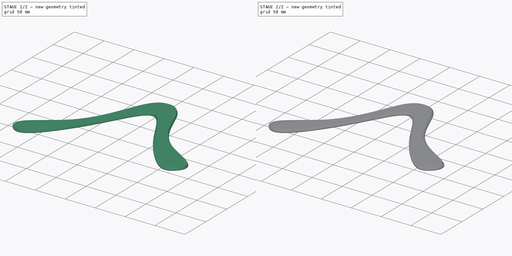
[diagram: build sequence overview — one tinted view per stage of 2, left to right]
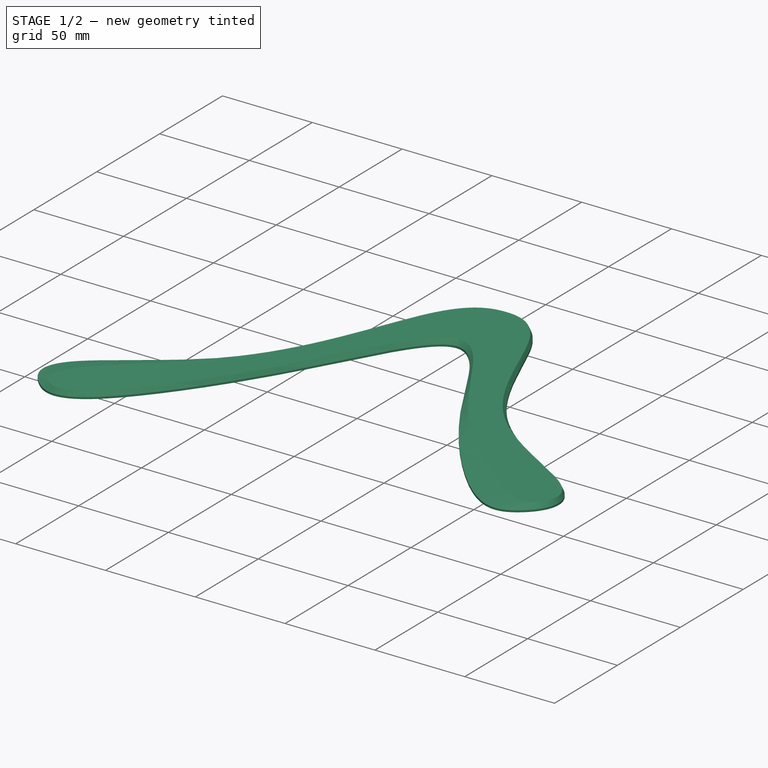
[diagram: stage 1 of 2 — iso view after this stage's code; geometry added in this stage tinted green]
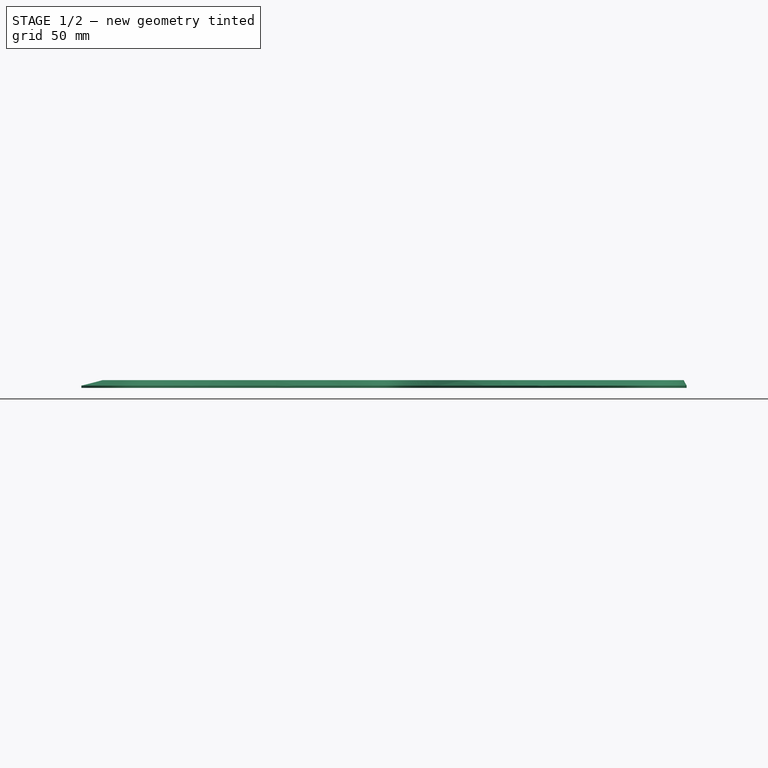
[diagram: stage 1 of 2 — front view after this stage's code; geometry added in this stage tinted green]
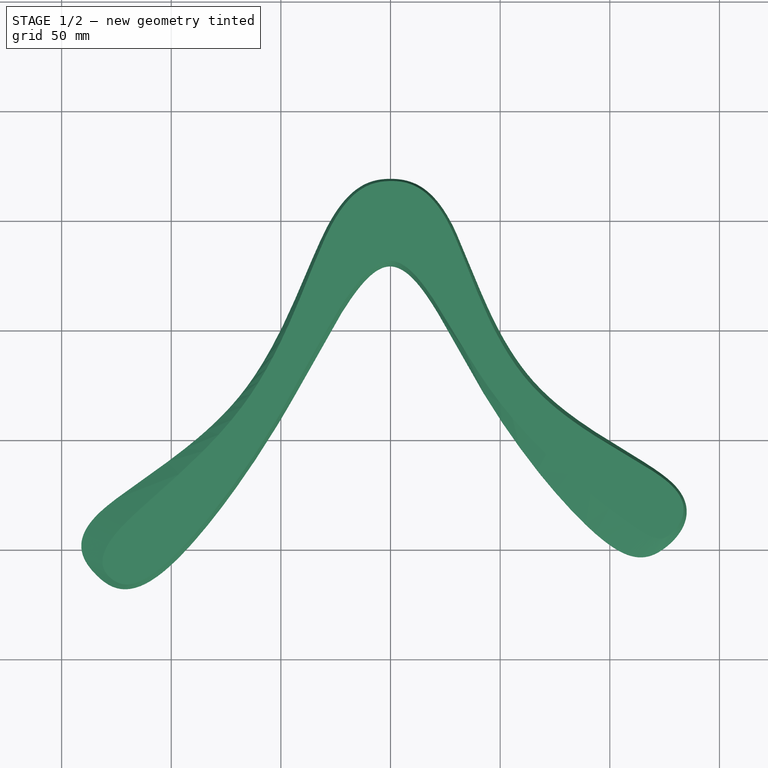
[diagram: stage 1 of 2 — top view after this stage's code; geometry added in this stage tinted green]
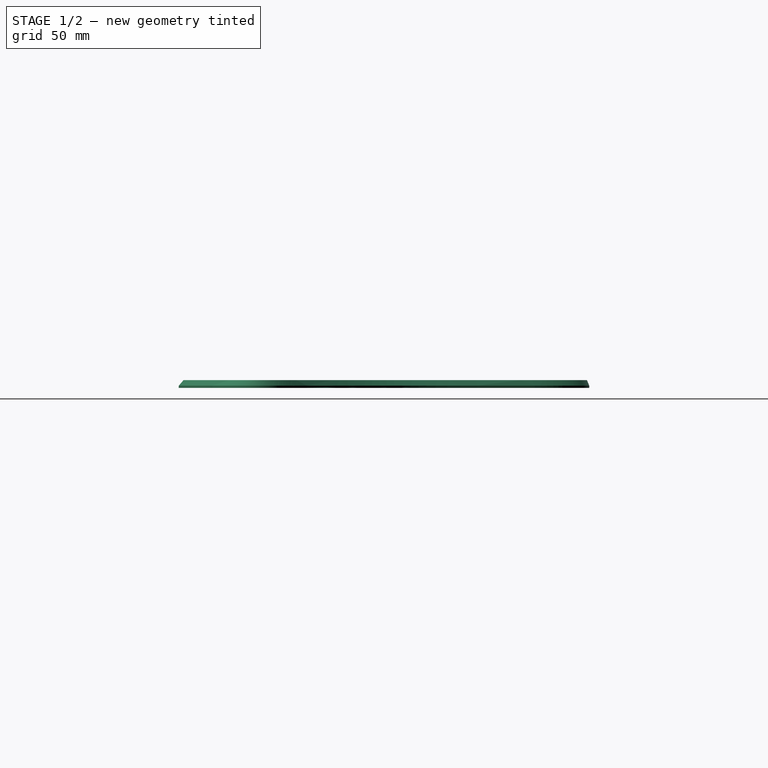
[diagram: stage 1 of 2 — right view after this stage's code; geometry added in this stage tinted green]
FCSTD DOCUMENT  (FreeCAD 0.20R27319 (Git))
Label: splinebased-2
License: All rights reserved
LicenseURL: http://en.wikipedia.org/wiki/All_rights_reserved
objects: Sketcher::SketchObject×2, PartDesign::Plane×1, PartDesign::AdditiveLoft×1, PartDesign::Pad×1, PartDesign::Fillet×1, PartDesign::Body×1
note: 10 computed .brp shape members not serialized (recipe doc carries the construction recipe); baked Part::Feature solids carry a one-line shape summary decoded from their .brp

FEATURE [Sketcher::SketchObject] Sketch  label="Outline"
  FullyConstrained = false
  MapMode = 5
  Support = -> [XY_Plane]
  sketch-geometry (32):
    g0: LineSegment StartX=0 StartY=0 StartZ=0 EndX=-114.715 EndY=-163.83 EndZ=0
    g1: LineSegment StartX=0 StartY=0 StartZ=0 EndX=103.244 EndY=-147.447 EndZ=0
    g2-g15: Circle x14 (B-spline internal-alignment scaffolding for g16; pole/knot coordinates omitted)
    g16: BSplineCurve PolesCount=14 KnotsCount=15 Degree=3 IsPeriodic=1
    g17-g31: GeomPoint x15 (B-spline internal-alignment scaffolding for g16; pole/knot coordinates omitted)
  constraints (13):
    c: Coincident(g0,g-1)
    c: Coincident(g1,g-1)
    c: Distance(g0) = 200
    c: Distance(g1) = 180
    c: Angle(g0,g1) = 1.22173
    c: Angle(g-2,g0) = 2.53073
    c: PointOnObject(g2,g-2)
    c: Weight(g2) = 1
    c: Equal(g2, g3-g9) x7
    c: PointOnObject(g9,g-2)
    c: Equal(g2, g10-g15) x6
    c: InternalAlignment(g2-g15 -> g16) x14
    c: InternalAlignment(g17-g31 -> g16) x15
FEATURE [PartDesign::Plane] DatumPlane  label="Top Plane"
  AttachmentOffset = pos=(0,0,2.5) rot=(0,0,1;0rad)
  Length = 322.236
  MapMode = 2
  Placement = pos=(0,0,2.5) rot=(0,0,1;0rad)
  ResizeMode = 0
  Support = -> [Sketch]
  Width = 239.05
FEATURE [Sketcher::SketchObject] Sketch001  label="Top Outline"
  FullyConstrained = false
  MapMode = 5
  Placement = pos=(0,0,2.5) rot=(0,0,1;0rad)
  Support = -> [DatumPlane]
  sketch-geometry (30):
    g0-g13: Circle x14 (B-spline internal-alignment scaffolding for g14; pole/knot coordinates omitted)
    g14: BSplineCurve PolesCount=14 KnotsCount=15 Degree=3 IsPeriodic=1
    g15-g29: GeomPoint x15 (B-spline internal-alignment scaffolding for g14; pole/knot coordinates omitted)
  constraints (4):
    c: Weight(g0) = 1
    c: Equal(g0, g1-g13) x13
    c: InternalAlignment(g0-g13 -> g14) x14
    c: InternalAlignment(g15-g29 -> g14) x15
FEATURE [PartDesign::AdditiveLoft] AdditiveLoft  label="Boomerang Loft"
  Closed = true
  Profile = -> Sketch
  Ruled = true
  Sections = -> [Sketch001]
FEATURE [PartDesign::Pad] Pad  label="Bottom Pad"
  BaseFeature = -> AdditiveLoft
  Direction = (0,0,-1)
  Length = 1
  Length2 = 100
  Profile = -> AdditiveLoft [Face1]
  Type = 0
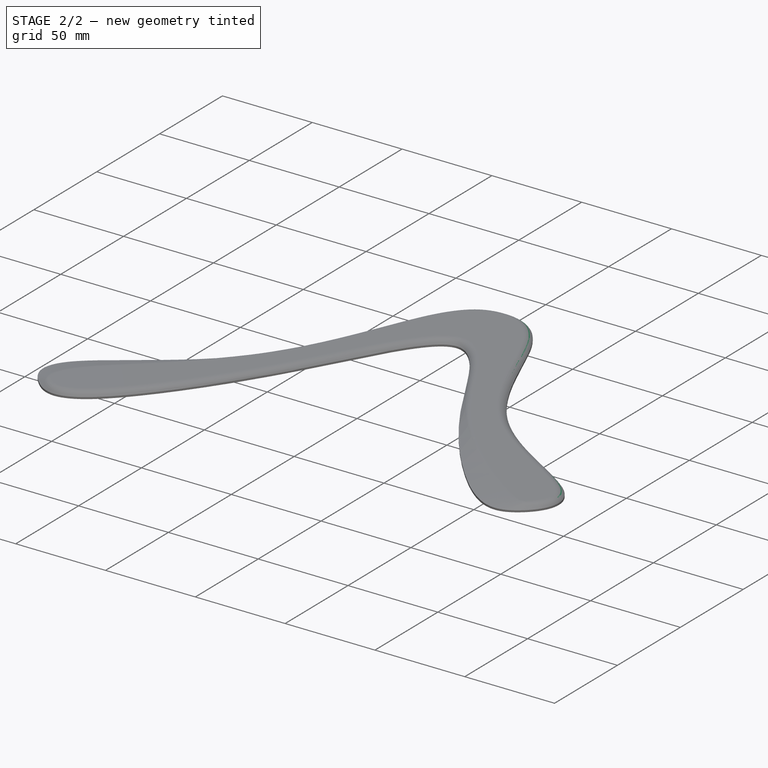
[diagram: stage 2 of 2 — iso view after this stage's code; geometry added in this stage tinted green]
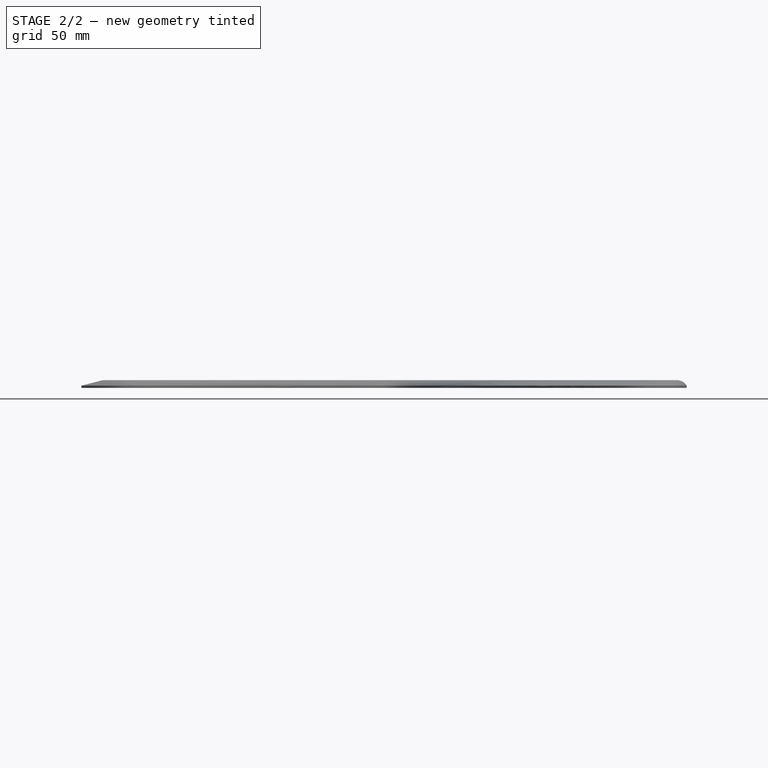
[diagram: stage 2 of 2 — front view after this stage's code; geometry added in this stage tinted green]
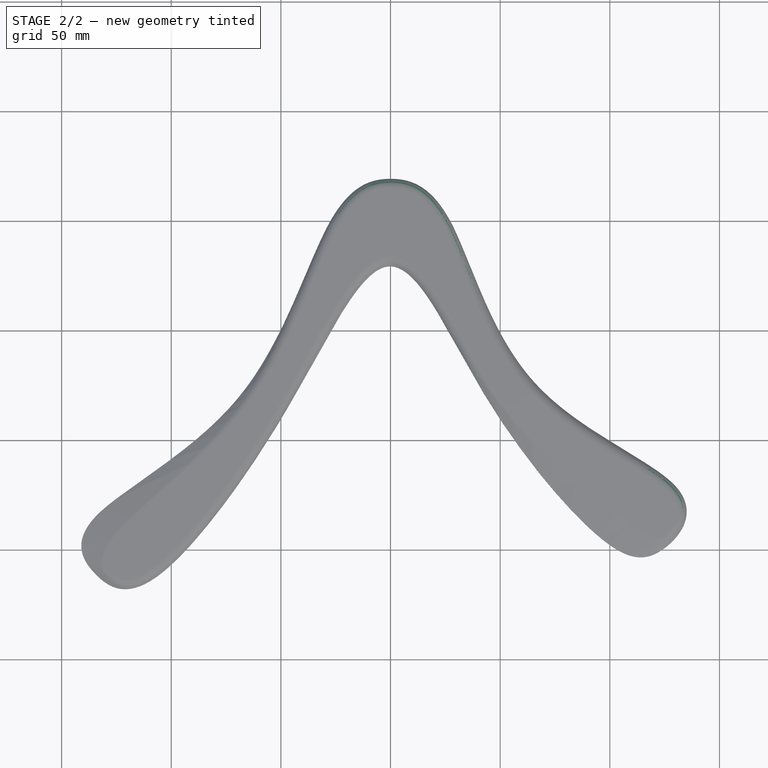
[diagram: stage 2 of 2 — top view after this stage's code; geometry added in this stage tinted green]
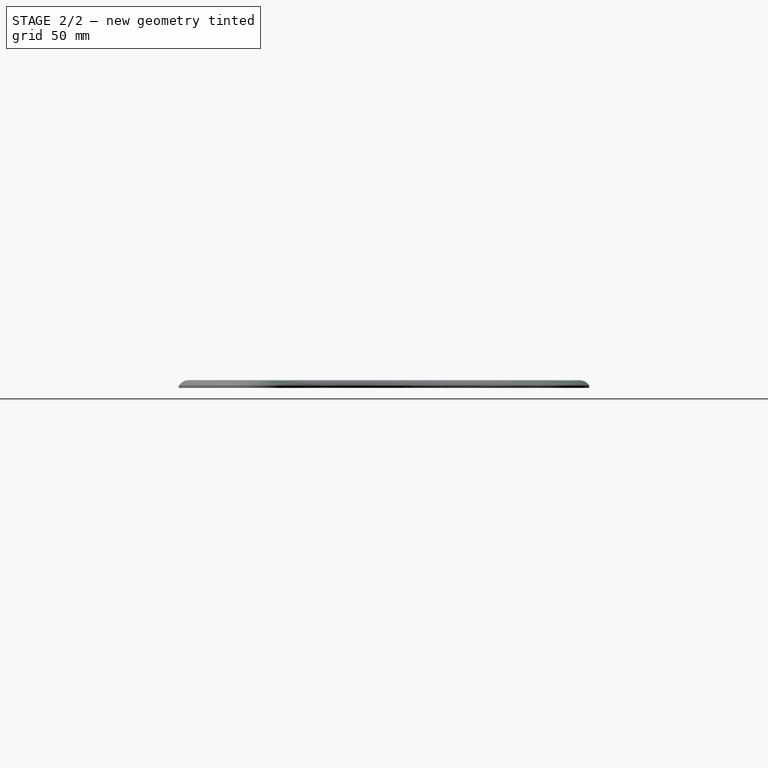
[diagram: stage 2 of 2 — right view after this stage's code; geometry added in this stage tinted green]
FEATURE [PartDesign::Fillet] Fillet  label="Airfoil Fillet"
  Base = -> Pad [Face4]
  BaseFeature = -> Pad
  Radius = 5
  SupportTransform = false
FEATURE [PartDesign::Body] Body  label="Boomerang"
  Group = -> [Sketch,DatumPlane,Sketch001,AdditiveLoft,Pad,Fillet]
  Origin = -> Origin
  Tip = -> Fillet
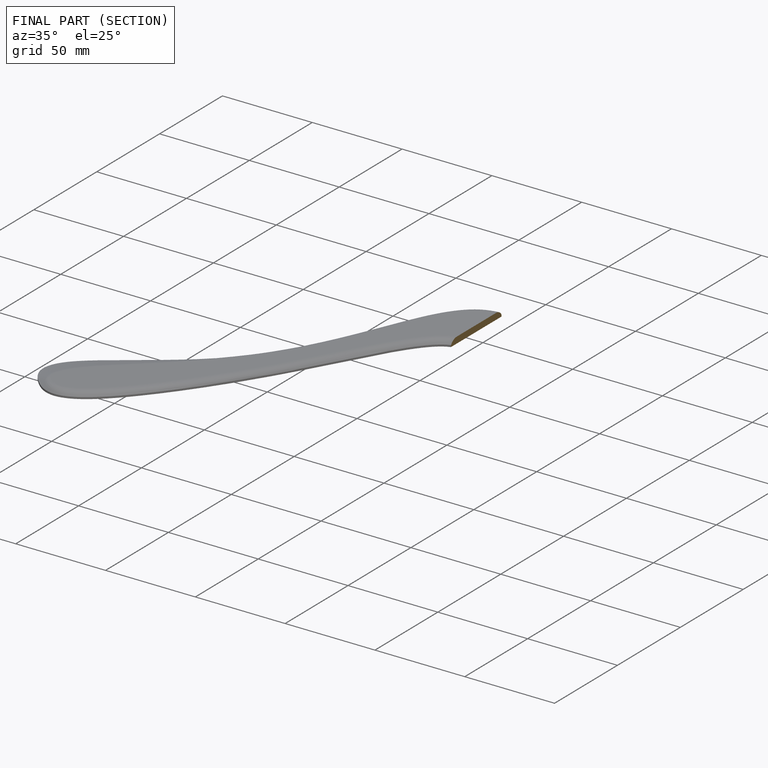
[diagram: finished part — half-section view (interior)]
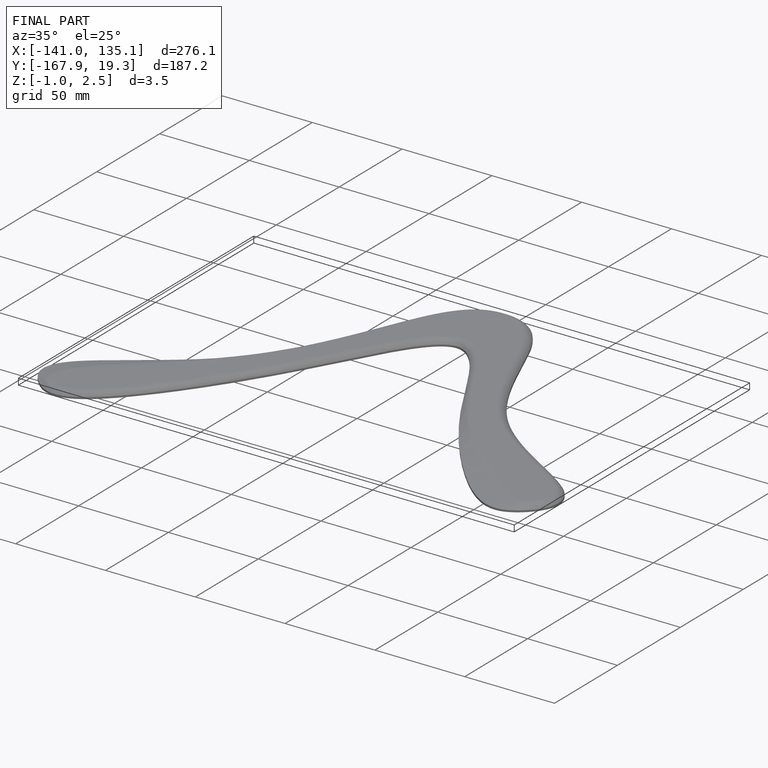
[diagram: finished part — iso view with bounding-box wireframe]
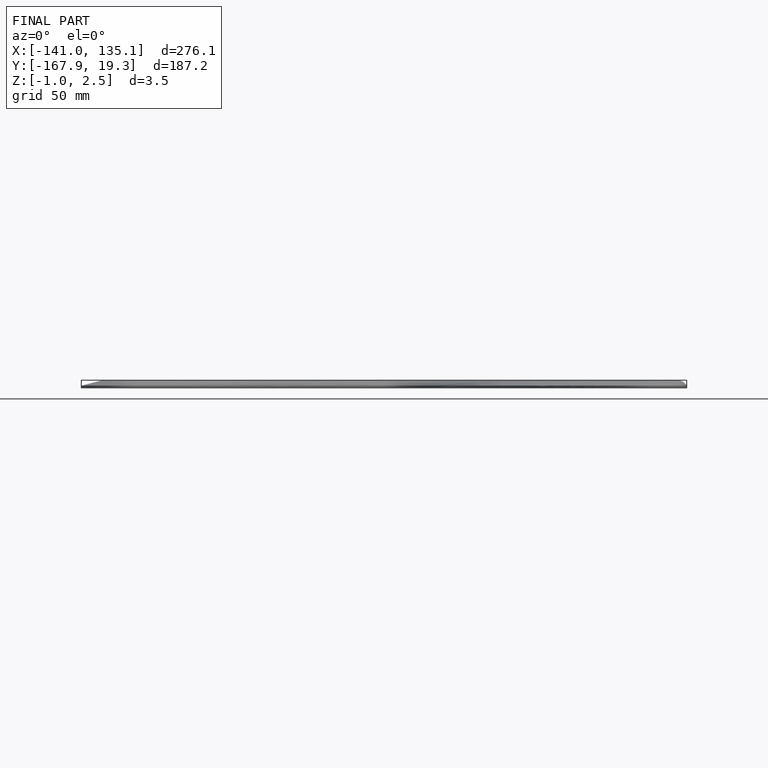
[diagram: finished part — front view with bounding-box wireframe]
